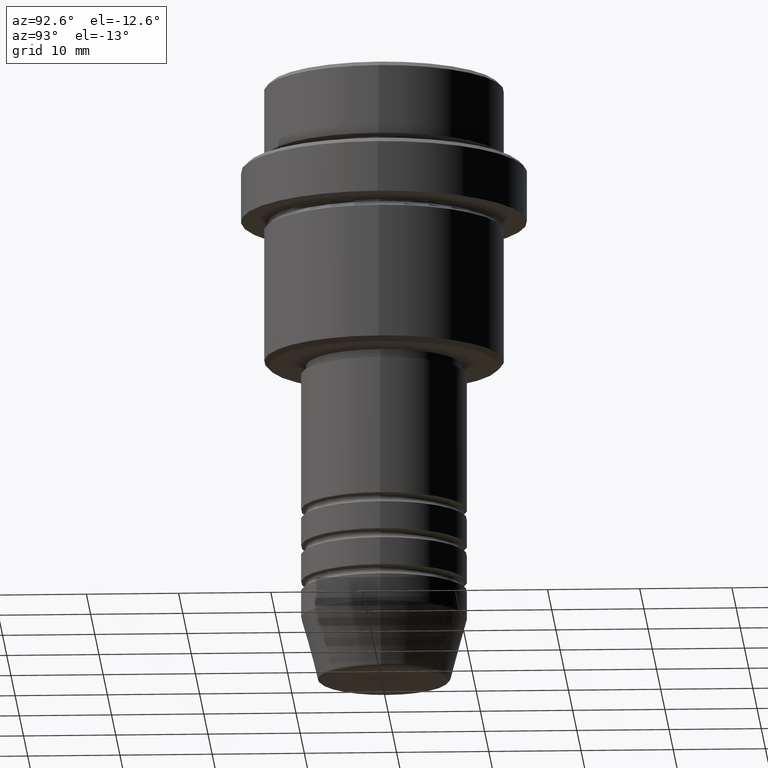
[diagram: clean part render]
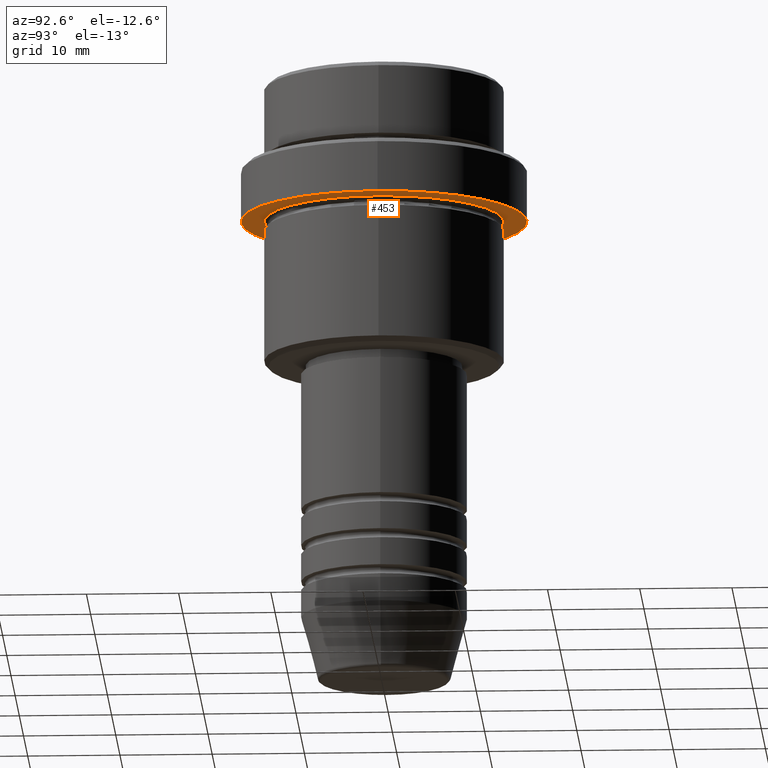
[diagram: same view with one face highlighted and labeled with its STEP entity id]
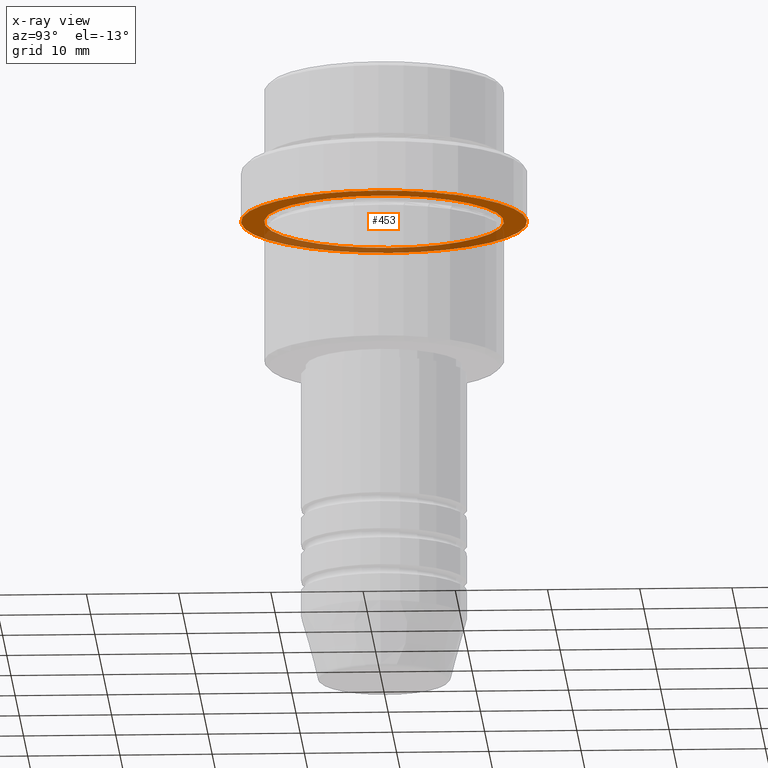
[diagram: x-ray of the same camera — body ghosted, the highlighted face saturated]
A machine part, auxiliary view. The second image highlights one B-rep face of the part: STEP entity #453.
The next image is the same camera in x-ray: the body ghosted, the highlighted face saturated — about 36% of this face is hidden behind the body in this view.
In plain terms, the highlighted planar face has unit normal (0, 0, -1).
Its self-contained STEP definition (entity closure, byte-faithful):
#17 = ORIENTED_EDGE ( 'NONE', *, *, #1357, .T. ) ;
#24 = CARTESIAN_POINT ( 'NONE',  ( 0.000000000000000000, 0.000000000000000000, -15.00000000000000000 ) ) ;
#28 = CIRCLE ( 'NONE', #824, 15.50000000000000000 ) ;
#57 = CIRCLE ( 'NONE', #1066, 12.99999999999999645 ) ;
#139 = AXIS2_PLACEMENT_3D ( 'NONE', #24, #1331, #354 ) ;
#146 = DIRECTION ( 'NONE',  ( -0.000000000000000000, -0.000000000000000000, 1.000000000000000000 ) ) ;
#163 = CARTESIAN_POINT ( 'NONE',  ( 0.000000000000000000, 0.000000000000000000, -15.00000000000000000 ) ) ;
#213 = DIRECTION ( 'NONE',  ( -1.000000000000000000, 0.000000000000000000, -0.000000000000000000 ) ) ;
#231 = CARTESIAN_POINT ( 'NONE',  ( -12.99999999999999645, 0.000000000000000000, -15.00000000000000000 ) ) ;
#278 = CARTESIAN_POINT ( 'NONE',  ( 0.000000000000000000, 0.000000000000000000, -15.00000000000000000 ) ) ;
#354 = DIRECTION ( 'NONE',  ( 1.000000000000000000, 0.000000000000000000, 0.000000000000000000 ) ) ;
#395 = DIRECTION ( 'NONE',  ( -0.000000000000000000, -0.000000000000000000, 1.000000000000000000 ) ) ;
#407 = ORIENTED_EDGE ( 'NONE', *, *, #713, .T. ) ;
#419 = VERTEX_POINT ( 'NONE', #873 ) ;
#453 = ADVANCED_FACE ( 'NONE', ( #1297, #553 ), #1088, .T. ) ;
#499 = DIRECTION ( 'NONE',  ( -1.000000000000000000, 0.000000000000000000, 0.000000000000000000 ) ) ;
#549 = VERTEX_POINT ( 'NONE', #231 ) ;
#552 = VERTEX_POINT ( 'NONE', #1103 ) ;
#553 = FACE_OUTER_BOUND ( 'NONE', #967, .T. ) ;
#597 = CIRCLE ( 'NONE', #901, 12.99999999999999645 ) ;
#602 = CIRCLE ( 'NONE', #139, 15.50000000000000000 ) ;
#607 = DIRECTION ( 'NONE',  ( 1.000000000000000000, 0.000000000000000000, 0.000000000000000000 ) ) ;
#713 = EDGE_CURVE ( 'NONE', #549, #419, #57, .T. ) ;
#824 = AXIS2_PLACEMENT_3D ( 'NONE', #278, #395, #607 ) ;
#873 = CARTESIAN_POINT ( 'NONE',  ( 12.99999999999999645, 1.592040838891558701E-15, -15.00000000000000000 ) ) ;
#900 = ORIENTED_EDGE ( 'NONE', *, *, #1407, .F. ) ;
#901 = AXIS2_PLACEMENT_3D ( 'NONE', #163, #1274, #499 ) ;
#941 = VERTEX_POINT ( 'NONE', #1063 ) ;
#967 = EDGE_LOOP ( 'NONE', ( #900, #1341 ) ) ;
#988 = CARTESIAN_POINT ( 'NONE',  ( 0.000000000000000000, 15.50000000000000000, -15.00000000000000000 ) ) ;
#1063 = CARTESIAN_POINT ( 'NONE',  ( -15.50000000000000000, 1.898202538678397557E-15, -15.00000000000000000 ) ) ;
#1066 = AXIS2_PLACEMENT_3D ( 'NONE', #1242, #146, #1348 ) ;
#1072 = AXIS2_PLACEMENT_3D ( 'NONE', #988, #1413, #213 ) ;
#1088 = PLANE ( 'NONE',  #1072 ) ;
#1103 = CARTESIAN_POINT ( 'NONE',  ( 15.50000000000000000, 0.000000000000000000, -15.00000000000000000 ) ) ;
#1218 = EDGE_LOOP ( 'NONE', ( #407, #17 ) ) ;
#1242 = CARTESIAN_POINT ( 'NONE',  ( 0.000000000000000000, 0.000000000000000000, -15.00000000000000000 ) ) ;
#1247 = EDGE_CURVE ( 'NONE', #941, #552, #602, .T. ) ;
#1274 = DIRECTION ( 'NONE',  ( -0.000000000000000000, -0.000000000000000000, 1.000000000000000000 ) ) ;
#1297 = FACE_BOUND ( 'NONE', #1218, .T. ) ;
#1331 = DIRECTION ( 'NONE',  ( -0.000000000000000000, -0.000000000000000000, 1.000000000000000000 ) ) ;
#1341 = ORIENTED_EDGE ( 'NONE', *, *, #1247, .F. ) ;
#1348 = DIRECTION ( 'NONE',  ( -1.000000000000000000, 0.000000000000000000, 0.000000000000000000 ) ) ;
#1357 = EDGE_CURVE ( 'NONE', #419, #549, #597, .T. ) ;
#1407 = EDGE_CURVE ( 'NONE', #552, #941, #28, .T. ) ;
#1413 = DIRECTION ( 'NONE',  ( 0.000000000000000000, 0.000000000000000000, -1.000000000000000000 ) ) ;